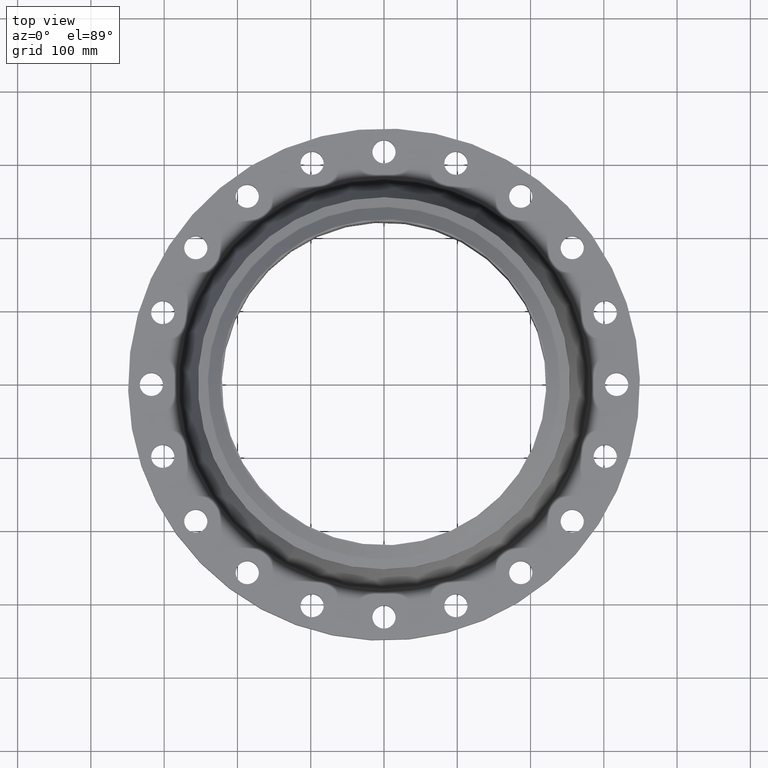
[diagram: clean part render]
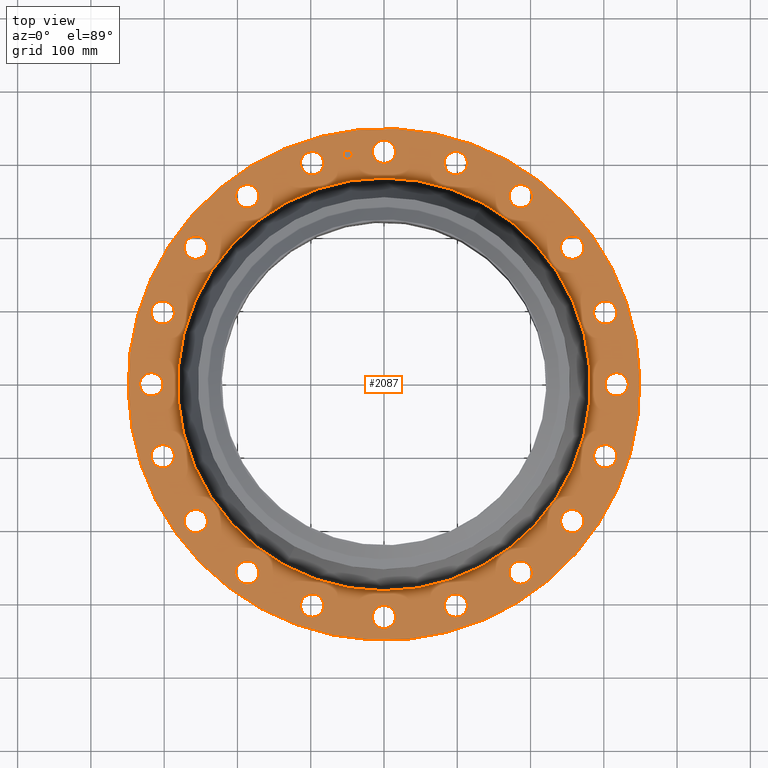
[diagram: same view with one face highlighted and labeled with its STEP entity id]
A machine part, top view. The second image highlights one B-rep face of the part: STEP entity #2087.
In plain terms, the highlighted planar face has unit normal (0, 0, -1).
Its self-contained STEP definition (entity closure, byte-faithful):
#65=AXIS2_PLACEMENT_3D('Circle Axis2P3D',#63,#64,$) ;
#82=AXIS2_PLACEMENT_3D('Circle Axis2P3D',#80,#81,$) ;
#115=AXIS2_PLACEMENT_3D('Circle Axis2P3D',#113,#114,$) ;
#139=AXIS2_PLACEMENT_3D('Circle Axis2P3D',#137,#138,$) ;
#156=AXIS2_PLACEMENT_3D('Circle Axis2P3D',#154,#155,$) ;
#191=AXIS2_PLACEMENT_3D('Circle Axis2P3D',#189,#190,$) ;
#948=AXIS2_PLACEMENT_3D('Circle Axis2P3D',#946,#947,$) ;
#960=AXIS2_PLACEMENT_3D('Circle Axis2P3D',#958,#959,$) ;
#991=AXIS2_PLACEMENT_3D('Circle Axis2P3D',#989,#990,$) ;
#1003=AXIS2_PLACEMENT_3D('Circle Axis2P3D',#1001,#1002,$) ;
#1034=AXIS2_PLACEMENT_3D('Circle Axis2P3D',#1032,#1033,$) ;
#1046=AXIS2_PLACEMENT_3D('Circle Axis2P3D',#1044,#1045,$) ;
#1077=AXIS2_PLACEMENT_3D('Circle Axis2P3D',#1075,#1076,$) ;
#1089=AXIS2_PLACEMENT_3D('Circle Axis2P3D',#1087,#1088,$) ;
#1120=AXIS2_PLACEMENT_3D('Circle Axis2P3D',#1118,#1119,$) ;
#1132=AXIS2_PLACEMENT_3D('Circle Axis2P3D',#1130,#1131,$) ;
#1163=AXIS2_PLACEMENT_3D('Circle Axis2P3D',#1161,#1162,$) ;
#1175=AXIS2_PLACEMENT_3D('Circle Axis2P3D',#1173,#1174,$) ;
#1206=AXIS2_PLACEMENT_3D('Circle Axis2P3D',#1204,#1205,$) ;
#1218=AXIS2_PLACEMENT_3D('Circle Axis2P3D',#1216,#1217,$) ;
#1249=AXIS2_PLACEMENT_3D('Circle Axis2P3D',#1247,#1248,$) ;
#1261=AXIS2_PLACEMENT_3D('Circle Axis2P3D',#1259,#1260,$) ;
#1292=AXIS2_PLACEMENT_3D('Circle Axis2P3D',#1290,#1291,$) ;
#1304=AXIS2_PLACEMENT_3D('Circle Axis2P3D',#1302,#1303,$) ;
#1335=AXIS2_PLACEMENT_3D('Circle Axis2P3D',#1333,#1334,$) ;
#1347=AXIS2_PLACEMENT_3D('Circle Axis2P3D',#1345,#1346,$) ;
#1378=AXIS2_PLACEMENT_3D('Circle Axis2P3D',#1376,#1377,$) ;
#1390=AXIS2_PLACEMENT_3D('Circle Axis2P3D',#1388,#1389,$) ;
#1421=AXIS2_PLACEMENT_3D('Circle Axis2P3D',#1419,#1420,$) ;
#1433=AXIS2_PLACEMENT_3D('Circle Axis2P3D',#1431,#1432,$) ;
#1464=AXIS2_PLACEMENT_3D('Circle Axis2P3D',#1462,#1463,$) ;
#1476=AXIS2_PLACEMENT_3D('Circle Axis2P3D',#1474,#1475,$) ;
#1507=AXIS2_PLACEMENT_3D('Circle Axis2P3D',#1505,#1506,$) ;
#1519=AXIS2_PLACEMENT_3D('Circle Axis2P3D',#1517,#1518,$) ;
#1550=AXIS2_PLACEMENT_3D('Circle Axis2P3D',#1548,#1549,$) ;
#1562=AXIS2_PLACEMENT_3D('Circle Axis2P3D',#1560,#1561,$) ;
#1593=AXIS2_PLACEMENT_3D('Circle Axis2P3D',#1591,#1592,$) ;
#1605=AXIS2_PLACEMENT_3D('Circle Axis2P3D',#1603,#1604,$) ;
#1636=AXIS2_PLACEMENT_3D('Circle Axis2P3D',#1634,#1635,$) ;
#1648=AXIS2_PLACEMENT_3D('Circle Axis2P3D',#1646,#1647,$) ;
#1679=AXIS2_PLACEMENT_3D('Circle Axis2P3D',#1677,#1678,$) ;
#1691=AXIS2_PLACEMENT_3D('Circle Axis2P3D',#1689,#1690,$) ;
#1722=AXIS2_PLACEMENT_3D('Circle Axis2P3D',#1720,#1721,$) ;
#1734=AXIS2_PLACEMENT_3D('Circle Axis2P3D',#1732,#1733,$) ;
#1979=AXIS2_PLACEMENT_3D('Plane Axis2P3D',#1976,#1977,#1978) ;
#2071=AXIS2_PLACEMENT_3D('Circle Axis2P3D',#2069,#2070,$) ;
#2080=AXIS2_PLACEMENT_3D('Circle Axis2P3D',#2078,#2079,$) ;
#46=CARTESIAN_POINT('Vertex',(-0.548489101184,12.7996409617,1.62000000001)) ;
#60=CARTESIAN_POINT('Vertex',(0.548489101184,12.2003590384,1.62000000001)) ;
#63=CARTESIAN_POINT('Axis2P3D Location',(0.,12.5000000001,1.62000000001)) ;
#80=CARTESIAN_POINT('Axis2P3D Location',(0.,12.5000000001,1.62000000001)) ;
#110=CARTESIAN_POINT('Vertex',(-6.59210115583,-12.066760226,1.62000000001)) ;
#113=CARTESIAN_POINT('Axis2P3D Location',(0.,0.,1.62000000001)) ;
#117=CARTESIAN_POINT('Vertex',(6.59210115583,12.066760226,1.62000000001)) ;
#137=CARTESIAN_POINT('Axis2P3D Location',(0.,0.,1.62000000001)) ;
#154=CARTESIAN_POINT('Axis2P3D Location',(0.,0.,1.62000000001)) ;
#158=CARTESIAN_POINT('Vertex',(5.31580278465,9.73051172834,1.62000000001)) ;
#160=CARTESIAN_POINT('Vertex',(-5.31580278465,-9.73051172834,1.62000000001)) ;
#189=CARTESIAN_POINT('Axis2P3D Location',(0.,0.,1.62000000001)) ;
#936=CARTESIAN_POINT('Vertex',(-3.43366244526,-12.3426743963,1.62000000001)) ;
#943=CARTESIAN_POINT('Vertex',(-4.29176241415,-11.4337385111,1.62000000001)) ;
#946=CARTESIAN_POINT('Axis2P3D Location',(-3.8627124297,-11.8882064537,1.62000000001)) ;
#958=CARTESIAN_POINT('Axis2P3D Location',(-3.8627124297,-11.8882064537,1.62000000001)) ;
#979=CARTESIAN_POINT('Vertex',(7.07970318783,10.6775208646,1.62000000001)) ;
#986=CARTESIAN_POINT('Vertex',(7.61492811954,9.54790399484,1.62000000001)) ;
#989=CARTESIAN_POINT('Axis2P3D Location',(7.34731565369,10.1127124297,1.62000000001)) ;
#1001=CARTESIAN_POINT('Axis2P3D Location',(7.34731565369,10.1127124297,1.62000000001)) ;
#1022=CARTESIAN_POINT('Vertex',(-7.07970318783,-10.6775208646,1.62000000001)) ;
#1029=CARTESIAN_POINT('Vertex',(-7.61492811954,-9.54790399484,1.62000000001)) ;
#1032=CARTESIAN_POINT('Axis2P3D Location',(-7.34731565369,-10.1127124297,1.62000000001)) ;
#1044=CARTESIAN_POINT('Axis2P3D Location',(-7.34731565369,-10.1127124297,1.62000000001)) ;
#1065=CARTESIAN_POINT('Vertex',(10.0327332552,7.967177196,1.62000000001)) ;
#1072=CARTESIAN_POINT('Vertex',(10.1926916043,6.72745411137,1.62000000001)) ;
#1075=CARTESIAN_POINT('Axis2P3D Location',(10.1127124297,7.34731565369,1.62000000001)) ;
#1087=CARTESIAN_POINT('Axis2P3D Location',(10.1127124297,7.34731565369,1.62000000001)) ;
#1108=CARTESIAN_POINT('Vertex',(-10.0327332552,-7.967177196,1.62000000001)) ;
#1115=CARTESIAN_POINT('Vertex',(-10.1926916043,-6.72745411137,1.62000000001)) ;
#1118=CARTESIAN_POINT('Axis2P3D Location',(-10.1127124297,-7.34731565369,1.62000000001)) ;
#1130=CARTESIAN_POINT('Axis2P3D Location',(-10.1127124297,-7.34731565369,1.62000000001)) ;
#1151=CARTESIAN_POINT('Vertex',(12.0036894893,4.47695071285,1.62000000001)) ;
#1158=CARTESIAN_POINT('Vertex',(11.7727234181,3.24847414655,1.62000000001)) ;
#1161=CARTESIAN_POINT('Axis2P3D Location',(11.8882064537,3.8627124297,1.62000000001)) ;
#1173=CARTESIAN_POINT('Axis2P3D Location',(11.8882064537,3.8627124297,1.62000000001)) ;
#1194=CARTESIAN_POINT('Vertex',(-12.0036894893,-4.47695071285,1.62000000001)) ;
#1201=CARTESIAN_POINT('Vertex',(-11.7727234181,-3.24847414655,1.62000000001)) ;
#1204=CARTESIAN_POINT('Axis2P3D Location',(-11.8882064537,-3.8627124297,1.62000000001)) ;
#1216=CARTESIAN_POINT('Axis2P3D Location',(-11.8882064537,-3.8627124297,1.62000000001)) ;
#1237=CARTESIAN_POINT('Vertex',(12.7996409617,0.548489101184,1.62000000001)) ;
#1244=CARTESIAN_POINT('Vertex',(12.2003590384,-0.548489101184,1.62000000001)) ;
#1247=CARTESIAN_POINT('Axis2P3D Location',(12.5000000001,3.54096181104E-015,1.62000000001)) ;
#1259=CARTESIAN_POINT('Axis2P3D Location',(12.5000000001,3.54096181104E-015,1.62000000001)) ;
#1280=CARTESIAN_POINT('Vertex',(-12.7996409617,-0.548489101184,1.62000000001)) ;
#1287=CARTESIAN_POINT('Vertex',(-12.2003590384,0.548489101184,1.62000000001)) ;
#1290=CARTESIAN_POINT('Axis2P3D Location',(-12.5000000001,-1.33984429947E-014,1.62000000001)) ;
#1302=CARTESIAN_POINT('Axis2P3D Location',(-12.5000000001,-1.33984429947E-014,1.62000000001)) ;
#1323=CARTESIAN_POINT('Vertex',(12.3426743963,-3.43366244526,1.62000000001)) ;
#1330=CARTESIAN_POINT('Vertex',(11.4337385111,-4.29176241415,1.62000000001)) ;
#1333=CARTESIAN_POINT('Axis2P3D Location',(11.8882064537,-3.8627124297,1.62000000001)) ;
#1345=CARTESIAN_POINT('Axis2P3D Location',(11.8882064537,-3.8627124297,1.62000000001)) ;
#1366=CARTESIAN_POINT('Vertex',(-12.3426743963,3.43366244526,1.62000000001)) ;
#1373=CARTESIAN_POINT('Vertex',(-11.4337385111,4.29176241415,1.62000000001)) ;
#1376=CARTESIAN_POINT('Axis2P3D Location',(-11.8882064537,3.8627124297,1.62000000001)) ;
#1388=CARTESIAN_POINT('Axis2P3D Location',(-11.8882064537,3.8627124297,1.62000000001)) ;
#1409=CARTESIAN_POINT('Vertex',(10.6775208646,-7.07970318783,1.62000000001)) ;
#1416=CARTESIAN_POINT('Vertex',(9.54790399484,-7.61492811954,1.62000000001)) ;
#1419=CARTESIAN_POINT('Axis2P3D Location',(10.1127124297,-7.34731565369,1.62000000001)) ;
#1431=CARTESIAN_POINT('Axis2P3D Location',(10.1127124297,-7.34731565369,1.62000000001)) ;
#1452=CARTESIAN_POINT('Vertex',(-10.6775208646,7.07970318783,1.62000000001)) ;
#1459=CARTESIAN_POINT('Vertex',(-9.54790399484,7.61492811954,1.62000000001)) ;
#1462=CARTESIAN_POINT('Axis2P3D Location',(-10.1127124297,7.34731565369,1.62000000001)) ;
#1474=CARTESIAN_POINT('Axis2P3D Location',(-10.1127124297,7.34731565369,1.62000000001)) ;
#1495=CARTESIAN_POINT('Vertex',(7.967177196,-10.0327332552,1.62000000001)) ;
#1502=CARTESIAN_POINT('Vertex',(6.72745411137,-10.1926916043,1.62000000001)) ;
#1505=CARTESIAN_POINT('Axis2P3D Location',(7.34731565369,-10.1127124297,1.62000000001)) ;
#1517=CARTESIAN_POINT('Axis2P3D Location',(7.34731565369,-10.1127124297,1.62000000001)) ;
#1538=CARTESIAN_POINT('Vertex',(-7.967177196,10.0327332552,1.62000000001)) ;
#1545=CARTESIAN_POINT('Vertex',(-6.72745411137,10.1926916043,1.62000000001)) ;
#1548=CARTESIAN_POINT('Axis2P3D Location',(-7.34731565369,10.1127124297,1.62000000001)) ;
#1560=CARTESIAN_POINT('Axis2P3D Location',(-7.34731565369,10.1127124297,1.62000000001)) ;
#1581=CARTESIAN_POINT('Vertex',(4.47695071285,-12.0036894893,1.62000000001)) ;
#1588=CARTESIAN_POINT('Vertex',(3.24847414655,-11.7727234181,1.62000000001)) ;
#1591=CARTESIAN_POINT('Axis2P3D Location',(3.8627124297,-11.8882064537,1.62000000001)) ;
#1603=CARTESIAN_POINT('Axis2P3D Location',(3.8627124297,-11.8882064537,1.62000000001)) ;
#1624=CARTESIAN_POINT('Vertex',(-4.47695071285,12.0036894893,1.62000000001)) ;
#1631=CARTESIAN_POINT('Vertex',(-3.24847414655,11.7727234181,1.62000000001)) ;
#1634=CARTESIAN_POINT('Axis2P3D Location',(-3.8627124297,11.8882064537,1.62000000001)) ;
#1646=CARTESIAN_POINT('Axis2P3D Location',(-3.8627124297,11.8882064537,1.62000000001)) ;
#1667=CARTESIAN_POINT('Vertex',(0.548489101184,-12.7996409617,1.62000000001)) ;
#1674=CARTESIAN_POINT('Vertex',(-0.548489101184,-12.2003590384,1.62000000001)) ;
#1677=CARTESIAN_POINT('Axis2P3D Location',(7.08192362209E-015,-12.5000000001,1.62000000001)) ;
#1689=CARTESIAN_POINT('Axis2P3D Location',(7.08192362209E-015,-12.5000000001,1.62000000001)) ;
#1710=CARTESIAN_POINT('Vertex',(3.43366244526,12.3426743963,1.62000000001)) ;
#1717=CARTESIAN_POINT('Vertex',(4.29176241415,11.4337385111,1.62000000001)) ;
#1720=CARTESIAN_POINT('Axis2P3D Location',(3.8627124297,11.8882064537,1.62000000001)) ;
#1732=CARTESIAN_POINT('Axis2P3D Location',(3.8627124297,11.8882064537,1.62000000001)) ;
#1976=CARTESIAN_POINT('Axis2P3D Location',(0.,13.7500000001,1.62000000001)) ;
#2069=CARTESIAN_POINT('Axis2P3D Location',(-1.95543081301,12.3461042575,1.62000000001)) ;
#2073=CARTESIAN_POINT('Vertex',(-1.71097794871,12.3848217876,1.62000000001)) ;
#2075=CARTESIAN_POINT('Vertex',(-2.19988367731,12.3073867274,1.62000000001)) ;
#2078=CARTESIAN_POINT('Axis2P3D Location',(-1.95543081301,12.3461042575,1.62000000001)) ;
#64=DIRECTION('Axis2P3D Direction',(0.,-0.,-0.0393700787402)) ;
#81=DIRECTION('Axis2P3D Direction',(0.,-0.,-0.0393700787402)) ;
#114=DIRECTION('Axis2P3D Direction',(0.,0.,-0.0393700787402)) ;
#138=DIRECTION('Axis2P3D Direction',(0.,0.,-0.0393700787402)) ;
#155=DIRECTION('Axis2P3D Direction',(0.,0.,-0.0393700787402)) ;
#190=DIRECTION('Axis2P3D Direction',(0.,0.,-0.0393700787402)) ;
#947=DIRECTION('Axis2P3D Direction',(0.,0.,-0.0393700787402)) ;
#959=DIRECTION('Axis2P3D Direction',(0.,0.,-0.0393700787402)) ;
#990=DIRECTION('Axis2P3D Direction',(0.,-0.,-0.0393700787402)) ;
#1002=DIRECTION('Axis2P3D Direction',(0.,-0.,-0.0393700787402)) ;
#1033=DIRECTION('Axis2P3D Direction',(0.,0.,-0.0393700787402)) ;
#1045=DIRECTION('Axis2P3D Direction',(0.,0.,-0.0393700787402)) ;
#1076=DIRECTION('Axis2P3D Direction',(0.,-0.,-0.0393700787402)) ;
#1088=DIRECTION('Axis2P3D Direction',(0.,-0.,-0.0393700787402)) ;
#1119=DIRECTION('Axis2P3D Direction',(0.,0.,-0.0393700787402)) ;
#1131=DIRECTION('Axis2P3D Direction',(0.,0.,-0.0393700787402)) ;
#1162=DIRECTION('Axis2P3D Direction',(0.,-0.,-0.0393700787402)) ;
#1174=DIRECTION('Axis2P3D Direction',(0.,-0.,-0.0393700787402)) ;
#1205=DIRECTION('Axis2P3D Direction',(0.,0.,-0.0393700787402)) ;
#1217=DIRECTION('Axis2P3D Direction',(0.,0.,-0.0393700787402)) ;
#1248=DIRECTION('Axis2P3D Direction',(0.,-0.,-0.0393700787402)) ;
#1260=DIRECTION('Axis2P3D Direction',(0.,-0.,-0.0393700787402)) ;
#1291=DIRECTION('Axis2P3D Direction',(0.,0.,-0.0393700787402)) ;
#1303=DIRECTION('Axis2P3D Direction',(0.,0.,-0.0393700787402)) ;
#1334=DIRECTION('Axis2P3D Direction',(-0.,0.,-0.0393700787402)) ;
#1346=DIRECTION('Axis2P3D Direction',(-0.,0.,-0.0393700787402)) ;
#1377=DIRECTION('Axis2P3D Direction',(0.,0.,-0.0393700787402)) ;
#1389=DIRECTION('Axis2P3D Direction',(0.,0.,-0.0393700787402)) ;
#1420=DIRECTION('Axis2P3D Direction',(-0.,0.,-0.0393700787402)) ;
#1432=DIRECTION('Axis2P3D Direction',(-0.,0.,-0.0393700787402)) ;
#1463=DIRECTION('Axis2P3D Direction',(0.,0.,-0.0393700787402)) ;
#1475=DIRECTION('Axis2P3D Direction',(0.,0.,-0.0393700787402)) ;
#1506=DIRECTION('Axis2P3D Direction',(-0.,0.,-0.0393700787402)) ;
#1518=DIRECTION('Axis2P3D Direction',(-0.,0.,-0.0393700787402)) ;
#1549=DIRECTION('Axis2P3D Direction',(0.,0.,-0.0393700787402)) ;
#1561=DIRECTION('Axis2P3D Direction',(0.,0.,-0.0393700787402)) ;
#1592=DIRECTION('Axis2P3D Direction',(-0.,0.,-0.0393700787402)) ;
#1604=DIRECTION('Axis2P3D Direction',(-0.,0.,-0.0393700787402)) ;
#1635=DIRECTION('Axis2P3D Direction',(0.,0.,-0.0393700787402)) ;
#1647=DIRECTION('Axis2P3D Direction',(0.,0.,-0.0393700787402)) ;
#1678=DIRECTION('Axis2P3D Direction',(-0.,0.,-0.0393700787402)) ;
#1690=DIRECTION('Axis2P3D Direction',(-0.,0.,-0.0393700787402)) ;
#1721=DIRECTION('Axis2P3D Direction',(0.,-0.,-0.0393700787402)) ;
#1733=DIRECTION('Axis2P3D Direction',(0.,-0.,-0.0393700787402)) ;
#1977=DIRECTION('Axis2P3D Direction',(0.,0.,-0.0393700787402)) ;
#1978=DIRECTION('Axis2P3D XDirection',(0.0393700787402,0.,0.)) ;
#2070=DIRECTION('Axis2P3D Direction',(0.,0.,-0.0393700787402)) ;
#2079=DIRECTION('Axis2P3D Direction',(0.,0.,-0.0393700787402)) ;
#1982=ORIENTED_EDGE('',*,*,#141,.F.) ;
#1983=ORIENTED_EDGE('',*,*,#119,.F.) ;
#1986=ORIENTED_EDGE('',*,*,#67,.T.) ;
#1987=ORIENTED_EDGE('',*,*,#84,.T.) ;
#1990=ORIENTED_EDGE('',*,*,#193,.T.) ;
#1991=ORIENTED_EDGE('',*,*,#162,.T.) ;
#1994=ORIENTED_EDGE('',*,*,#1736,.T.) ;
#1995=ORIENTED_EDGE('',*,*,#1724,.T.) ;
#1998=ORIENTED_EDGE('',*,*,#1005,.T.) ;
#1999=ORIENTED_EDGE('',*,*,#993,.T.) ;
#2002=ORIENTED_EDGE('',*,*,#1091,.T.) ;
#2003=ORIENTED_EDGE('',*,*,#1079,.T.) ;
#2006=ORIENTED_EDGE('',*,*,#1177,.T.) ;
#2007=ORIENTED_EDGE('',*,*,#1165,.T.) ;
#2010=ORIENTED_EDGE('',*,*,#1263,.T.) ;
#2011=ORIENTED_EDGE('',*,*,#1251,.T.) ;
#2014=ORIENTED_EDGE('',*,*,#1349,.T.) ;
#2015=ORIENTED_EDGE('',*,*,#1337,.T.) ;
#2018=ORIENTED_EDGE('',*,*,#1435,.T.) ;
#2019=ORIENTED_EDGE('',*,*,#1423,.T.) ;
#2022=ORIENTED_EDGE('',*,*,#1521,.T.) ;
#2023=ORIENTED_EDGE('',*,*,#1509,.T.) ;
#2026=ORIENTED_EDGE('',*,*,#1607,.T.) ;
#2027=ORIENTED_EDGE('',*,*,#1595,.T.) ;
#2030=ORIENTED_EDGE('',*,*,#1693,.T.) ;
#2031=ORIENTED_EDGE('',*,*,#1681,.T.) ;
#2034=ORIENTED_EDGE('',*,*,#962,.T.) ;
#2035=ORIENTED_EDGE('',*,*,#950,.T.) ;
#2038=ORIENTED_EDGE('',*,*,#1048,.T.) ;
#2039=ORIENTED_EDGE('',*,*,#1036,.T.) ;
#2042=ORIENTED_EDGE('',*,*,#1134,.T.) ;
#2043=ORIENTED_EDGE('',*,*,#1122,.T.) ;
#2046=ORIENTED_EDGE('',*,*,#1220,.T.) ;
#2047=ORIENTED_EDGE('',*,*,#1208,.T.) ;
#2050=ORIENTED_EDGE('',*,*,#1306,.T.) ;
#2051=ORIENTED_EDGE('',*,*,#1294,.T.) ;
#2054=ORIENTED_EDGE('',*,*,#1392,.T.) ;
#2055=ORIENTED_EDGE('',*,*,#1380,.T.) ;
#2058=ORIENTED_EDGE('',*,*,#1478,.T.) ;
#2059=ORIENTED_EDGE('',*,*,#1466,.T.) ;
#2062=ORIENTED_EDGE('',*,*,#1564,.T.) ;
#2063=ORIENTED_EDGE('',*,*,#1552,.T.) ;
#2066=ORIENTED_EDGE('',*,*,#1650,.T.) ;
#2067=ORIENTED_EDGE('',*,*,#1638,.T.) ;
#2084=ORIENTED_EDGE('',*,*,#2077,.F.) ;
#2085=ORIENTED_EDGE('',*,*,#2082,.F.) ;
#1988=FACE_BOUND('',#1985,.T.) ;
#1992=FACE_BOUND('',#1989,.T.) ;
#1996=FACE_BOUND('',#1993,.T.) ;
#2000=FACE_BOUND('',#1997,.T.) ;
#2004=FACE_BOUND('',#2001,.T.) ;
#2008=FACE_BOUND('',#2005,.T.) ;
#2012=FACE_BOUND('',#2009,.T.) ;
#2016=FACE_BOUND('',#2013,.T.) ;
#2020=FACE_BOUND('',#2017,.T.) ;
#2024=FACE_BOUND('',#2021,.T.) ;
#2028=FACE_BOUND('',#2025,.T.) ;
#2032=FACE_BOUND('',#2029,.T.) ;
#2036=FACE_BOUND('',#2033,.T.) ;
#2040=FACE_BOUND('',#2037,.T.) ;
#2044=FACE_BOUND('',#2041,.T.) ;
#2048=FACE_BOUND('',#2045,.T.) ;
#2052=FACE_BOUND('',#2049,.T.) ;
#2056=FACE_BOUND('',#2053,.T.) ;
#2060=FACE_BOUND('',#2057,.T.) ;
#2064=FACE_BOUND('',#2061,.T.) ;
#2068=FACE_BOUND('',#2065,.T.) ;
#2086=FACE_BOUND('',#2083,.T.) ;
#2087=ADVANCED_FACE('PartBody',(#1984,#1988,#1992,#1996,#2000,#2004,#2008,#2012,#2016,#2020,#2024,#2028,#2032,#2036,#2040,#2044,#2048,#2052,#2056,#2060,#2064,#2068,#2086),#1980,.F.) ;
#66=CIRCLE('generated circle',#65,0.625000000003) ;
#83=CIRCLE('generated circle',#82,0.625000000003) ;
#116=CIRCLE('generated circle',#115,13.7500000001) ;
#140=CIRCLE('generated circle',#139,13.7500000001) ;
#157=CIRCLE('generated circle',#156,11.0878590242) ;
#192=CIRCLE('generated circle',#191,11.0878590242) ;
#949=CIRCLE('generated circle',#948,0.625000000003) ;
#961=CIRCLE('generated circle',#960,0.625000000003) ;
#992=CIRCLE('generated circle',#991,0.625000000003) ;
#1004=CIRCLE('generated circle',#1003,0.625000000003) ;
#1035=CIRCLE('generated circle',#1034,0.625000000003) ;
#1047=CIRCLE('generated circle',#1046,0.625000000003) ;
#1078=CIRCLE('generated circle',#1077,0.625000000002) ;
#1090=CIRCLE('generated circle',#1089,0.625000000002) ;
#1121=CIRCLE('generated circle',#1120,0.625000000002) ;
#1133=CIRCLE('generated circle',#1132,0.625000000002) ;
#1164=CIRCLE('generated circle',#1163,0.625000000002) ;
#1176=CIRCLE('generated circle',#1175,0.625000000002) ;
#1207=CIRCLE('generated circle',#1206,0.625000000002) ;
#1219=CIRCLE('generated circle',#1218,0.625000000002) ;
#1250=CIRCLE('generated circle',#1249,0.625000000003) ;
#1262=CIRCLE('generated circle',#1261,0.625000000003) ;
#1293=CIRCLE('generated circle',#1292,0.625000000003) ;
#1305=CIRCLE('generated circle',#1304,0.625000000003) ;
#1336=CIRCLE('generated circle',#1335,0.625000000003) ;
#1348=CIRCLE('generated circle',#1347,0.625000000003) ;
#1379=CIRCLE('generated circle',#1378,0.625000000003) ;
#1391=CIRCLE('generated circle',#1390,0.625000000003) ;
#1422=CIRCLE('generated circle',#1421,0.625000000003) ;
#1434=CIRCLE('generated circle',#1433,0.625000000003) ;
#1465=CIRCLE('generated circle',#1464,0.625000000003) ;
#1477=CIRCLE('generated circle',#1476,0.625000000003) ;
#1508=CIRCLE('generated circle',#1507,0.625000000002) ;
#1520=CIRCLE('generated circle',#1519,0.625000000002) ;
#1551=CIRCLE('generated circle',#1550,0.625000000002) ;
#1563=CIRCLE('generated circle',#1562,0.625000000002) ;
#1594=CIRCLE('generated circle',#1593,0.625000000002) ;
#1606=CIRCLE('generated circle',#1605,0.625000000002) ;
#1637=CIRCLE('generated circle',#1636,0.625000000002) ;
#1649=CIRCLE('generated circle',#1648,0.625000000002) ;
#1680=CIRCLE('generated circle',#1679,0.625000000003) ;
#1692=CIRCLE('generated circle',#1691,0.625000000003) ;
#1723=CIRCLE('generated circle',#1722,0.625000000002) ;
#1735=CIRCLE('generated circle',#1734,0.625000000002) ;
#2072=CIRCLE('generated circle',#2071,0.247500000001) ;
#2081=CIRCLE('generated circle',#2080,0.247500000001) ;
#67=EDGE_CURVE('',#47,#61,#66,.T.) ;
#84=EDGE_CURVE('',#61,#47,#83,.T.) ;
#119=EDGE_CURVE('',#111,#118,#116,.T.) ;
#141=EDGE_CURVE('',#118,#111,#140,.T.) ;
#162=EDGE_CURVE('',#159,#161,#157,.T.) ;
#193=EDGE_CURVE('',#161,#159,#192,.T.) ;
#950=EDGE_CURVE('',#937,#944,#949,.T.) ;
#962=EDGE_CURVE('',#944,#937,#961,.T.) ;
#993=EDGE_CURVE('',#980,#987,#992,.T.) ;
#1005=EDGE_CURVE('',#987,#980,#1004,.T.) ;
#1036=EDGE_CURVE('',#1023,#1030,#1035,.T.) ;
#1048=EDGE_CURVE('',#1030,#1023,#1047,.T.) ;
#1079=EDGE_CURVE('',#1066,#1073,#1078,.T.) ;
#1091=EDGE_CURVE('',#1073,#1066,#1090,.T.) ;
#1122=EDGE_CURVE('',#1109,#1116,#1121,.T.) ;
#1134=EDGE_CURVE('',#1116,#1109,#1133,.T.) ;
#1165=EDGE_CURVE('',#1152,#1159,#1164,.T.) ;
#1177=EDGE_CURVE('',#1159,#1152,#1176,.T.) ;
#1208=EDGE_CURVE('',#1195,#1202,#1207,.T.) ;
#1220=EDGE_CURVE('',#1202,#1195,#1219,.T.) ;
#1251=EDGE_CURVE('',#1238,#1245,#1250,.T.) ;
#1263=EDGE_CURVE('',#1245,#1238,#1262,.T.) ;
#1294=EDGE_CURVE('',#1281,#1288,#1293,.T.) ;
#1306=EDGE_CURVE('',#1288,#1281,#1305,.T.) ;
#1337=EDGE_CURVE('',#1324,#1331,#1336,.T.) ;
#1349=EDGE_CURVE('',#1331,#1324,#1348,.T.) ;
#1380=EDGE_CURVE('',#1367,#1374,#1379,.T.) ;
#1392=EDGE_CURVE('',#1374,#1367,#1391,.T.) ;
#1423=EDGE_CURVE('',#1410,#1417,#1422,.T.) ;
#1435=EDGE_CURVE('',#1417,#1410,#1434,.T.) ;
#1466=EDGE_CURVE('',#1453,#1460,#1465,.T.) ;
#1478=EDGE_CURVE('',#1460,#1453,#1477,.T.) ;
#1509=EDGE_CURVE('',#1496,#1503,#1508,.T.) ;
#1521=EDGE_CURVE('',#1503,#1496,#1520,.T.) ;
#1552=EDGE_CURVE('',#1539,#1546,#1551,.T.) ;
#1564=EDGE_CURVE('',#1546,#1539,#1563,.T.) ;
#1595=EDGE_CURVE('',#1582,#1589,#1594,.T.) ;
#1607=EDGE_CURVE('',#1589,#1582,#1606,.T.) ;
#1638=EDGE_CURVE('',#1625,#1632,#1637,.T.) ;
#1650=EDGE_CURVE('',#1632,#1625,#1649,.T.) ;
#1681=EDGE_CURVE('',#1668,#1675,#1680,.T.) ;
#1693=EDGE_CURVE('',#1675,#1668,#1692,.T.) ;
#1724=EDGE_CURVE('',#1711,#1718,#1723,.T.) ;
#1736=EDGE_CURVE('',#1718,#1711,#1735,.T.) ;
#2077=EDGE_CURVE('',#2074,#2076,#2072,.F.) ;
#2082=EDGE_CURVE('',#2076,#2074,#2081,.F.) ;
#1981=EDGE_LOOP('',(#1982,#1983)) ;
#1985=EDGE_LOOP('',(#1986,#1987)) ;
#1989=EDGE_LOOP('',(#1990,#1991)) ;
#1993=EDGE_LOOP('',(#1994,#1995)) ;
#1997=EDGE_LOOP('',(#1998,#1999)) ;
#2001=EDGE_LOOP('',(#2002,#2003)) ;
#2005=EDGE_LOOP('',(#2006,#2007)) ;
#2009=EDGE_LOOP('',(#2010,#2011)) ;
#2013=EDGE_LOOP('',(#2014,#2015)) ;
#2017=EDGE_LOOP('',(#2018,#2019)) ;
#2021=EDGE_LOOP('',(#2022,#2023)) ;
#2025=EDGE_LOOP('',(#2026,#2027)) ;
#2029=EDGE_LOOP('',(#2030,#2031)) ;
#2033=EDGE_LOOP('',(#2034,#2035)) ;
#2037=EDGE_LOOP('',(#2038,#2039)) ;
#2041=EDGE_LOOP('',(#2042,#2043)) ;
#2045=EDGE_LOOP('',(#2046,#2047)) ;
#2049=EDGE_LOOP('',(#2050,#2051)) ;
#2053=EDGE_LOOP('',(#2054,#2055)) ;
#2057=EDGE_LOOP('',(#2058,#2059)) ;
#2061=EDGE_LOOP('',(#2062,#2063)) ;
#2065=EDGE_LOOP('',(#2066,#2067)) ;
#2083=EDGE_LOOP('',(#2084,#2085)) ;
#1984=FACE_OUTER_BOUND('',#1981,.T.) ;
#1980=PLANE('',#1979) ;
#47=VERTEX_POINT('',#46) ;
#61=VERTEX_POINT('',#60) ;
#111=VERTEX_POINT('',#110) ;
#118=VERTEX_POINT('',#117) ;
#159=VERTEX_POINT('',#158) ;
#161=VERTEX_POINT('',#160) ;
#937=VERTEX_POINT('',#936) ;
#944=VERTEX_POINT('',#943) ;
#980=VERTEX_POINT('',#979) ;
#987=VERTEX_POINT('',#986) ;
#1023=VERTEX_POINT('',#1022) ;
#1030=VERTEX_POINT('',#1029) ;
#1066=VERTEX_POINT('',#1065) ;
#1073=VERTEX_POINT('',#1072) ;
#1109=VERTEX_POINT('',#1108) ;
#1116=VERTEX_POINT('',#1115) ;
#1152=VERTEX_POINT('',#1151) ;
#1159=VERTEX_POINT('',#1158) ;
#1195=VERTEX_POINT('',#1194) ;
#1202=VERTEX_POINT('',#1201) ;
#1238=VERTEX_POINT('',#1237) ;
#1245=VERTEX_POINT('',#1244) ;
#1281=VERTEX_POINT('',#1280) ;
#1288=VERTEX_POINT('',#1287) ;
#1324=VERTEX_POINT('',#1323) ;
#1331=VERTEX_POINT('',#1330) ;
#1367=VERTEX_POINT('',#1366) ;
#1374=VERTEX_POINT('',#1373) ;
#1410=VERTEX_POINT('',#1409) ;
#1417=VERTEX_POINT('',#1416) ;
#1453=VERTEX_POINT('',#1452) ;
#1460=VERTEX_POINT('',#1459) ;
#1496=VERTEX_POINT('',#1495) ;
#1503=VERTEX_POINT('',#1502) ;
#1539=VERTEX_POINT('',#1538) ;
#1546=VERTEX_POINT('',#1545) ;
#1582=VERTEX_POINT('',#1581) ;
#1589=VERTEX_POINT('',#1588) ;
#1625=VERTEX_POINT('',#1624) ;
#1632=VERTEX_POINT('',#1631) ;
#1668=VERTEX_POINT('',#1667) ;
#1675=VERTEX_POINT('',#1674) ;
#1711=VERTEX_POINT('',#1710) ;
#1718=VERTEX_POINT('',#1717) ;
#2074=VERTEX_POINT('',#2073) ;
#2076=VERTEX_POINT('',#2075) ;